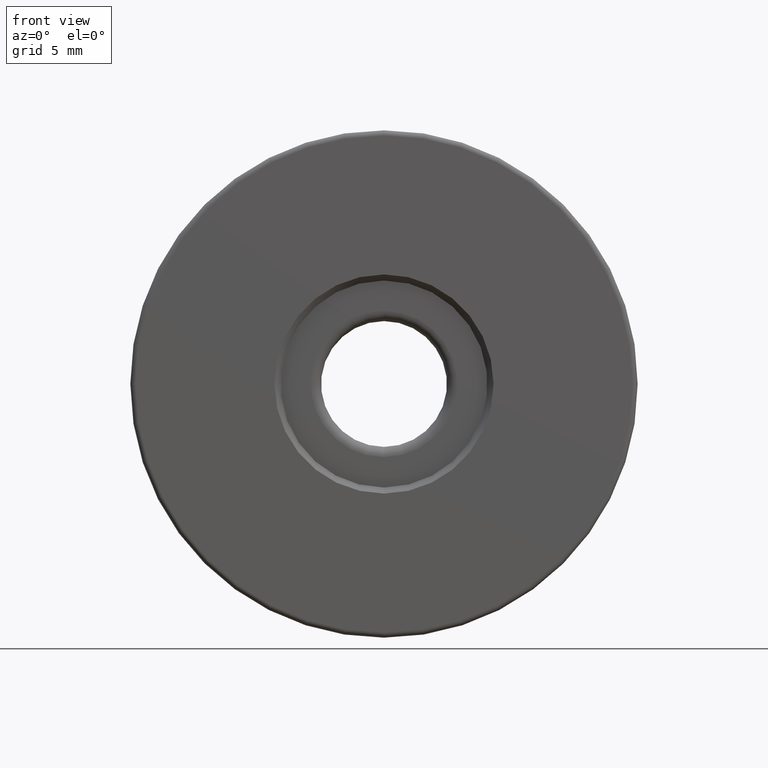
[diagram: clean part render]
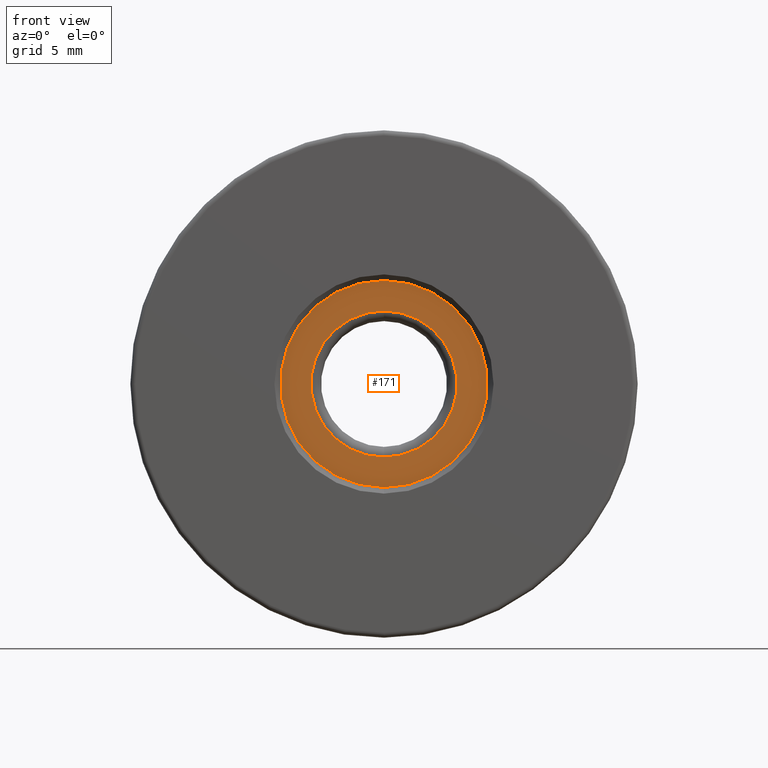
[diagram: same view with one face highlighted and labeled with its STEP entity id]
A machine part, front view. The second image highlights one B-rep face of the part: STEP entity #171.
In plain terms, the highlighted planar face has unit normal (0, -1, 0).
Its self-contained STEP definition (entity closure, byte-faithful):
#19 = DIRECTION ( 'NONE',  ( 0.0000000000000000000, 0.0000000000000000000, 1.000000000000000000 ) ) ;
#74 = CARTESIAN_POINT ( 'NONE',  ( -4.682026255059962949, -4.794975976998276046, 28.60000000000000142 ) ) ;
#87 = CARTESIAN_POINT ( 'NONE',  ( -4.682026255059963837, -4.794975976998275158, 30.10000000000000142 ) ) ;
#94 = DIRECTION ( 'NONE',  ( 0.0000000000000000000, 0.0000000000000000000, 1.000000000000000000 ) ) ;
#108 = VERTEX_POINT ( 'NONE', #87 ) ;
#118 = AXIS2_PLACEMENT_3D ( 'NONE', #469, #511, #236 ) ;
#171 = ADVANCED_FACE ( 'NONE', ( #331, #617 ), #520, .T. ) ;
#178 = ORIENTED_EDGE ( 'NONE', *, *, #560, .F. ) ;
#189 = CARTESIAN_POINT ( 'NONE',  ( -4.682026255059964726, -4.794975976998275158, 25.00000000000000000 ) ) ;
#200 = CARTESIAN_POINT ( 'NONE',  ( -4.682026255059964726, -4.794975976998275158, 25.00000000000000000 ) ) ;
#227 = DIRECTION ( 'NONE',  ( -0.0000000000000000000, 1.000000000000000000, -0.0000000000000000000 ) ) ;
#236 = DIRECTION ( 'NONE',  ( 0.0000000000000000000, 0.0000000000000000000, -1.000000000000000000 ) ) ;
#238 = EDGE_LOOP ( 'NONE', ( #178, #361 ) ) ;
#255 = CIRCLE ( 'NONE', #437, 3.599999999999999201 ) ;
#260 = CARTESIAN_POINT ( 'NONE',  ( -4.682026255059964726, -4.794975976998276046, 21.40000000000000213 ) ) ;
#281 = EDGE_CURVE ( 'NONE', #108, #404, #308, .T. ) ;
#285 = DIRECTION ( 'NONE',  ( 0.0000000000000000000, -1.000000000000000000, 0.0000000000000000000 ) ) ;
#293 = DIRECTION ( 'NONE',  ( -0.0000000000000000000, 1.000000000000000000, -0.0000000000000000000 ) ) ;
#302 = EDGE_CURVE ( 'NONE', #530, #498, #255, .T. ) ;
#308 = CIRCLE ( 'NONE', #611, 5.100000000000000533 ) ;
#331 = FACE_BOUND ( 'NONE', #429, .T. ) ;
#361 = ORIENTED_EDGE ( 'NONE', *, *, #281, .F. ) ;
#368 = ORIENTED_EDGE ( 'NONE', *, *, #555, .T. ) ;
#374 = CIRCLE ( 'NONE', #118, 3.599999999999999201 ) ;
#380 = CARTESIAN_POINT ( 'NONE',  ( -4.682026255059964726, -4.794975976998275158, 25.00000000000000000 ) ) ;
#400 = CARTESIAN_POINT ( 'NONE',  ( -4.682026255059964726, -4.794975976998275158, 25.00000000000000000 ) ) ;
#404 = VERTEX_POINT ( 'NONE', #450 ) ;
#424 = AXIS2_PLACEMENT_3D ( 'NONE', #380, #285, #475 ) ;
#429 = EDGE_LOOP ( 'NONE', ( #615, #368 ) ) ;
#437 = AXIS2_PLACEMENT_3D ( 'NONE', #400, #293, #541 ) ;
#450 = CARTESIAN_POINT ( 'NONE',  ( -4.682026255059964726, -4.794975976998275158, 19.90000000000000213 ) ) ;
#469 = CARTESIAN_POINT ( 'NONE',  ( -4.682026255059964726, -4.794975976998275158, 25.00000000000000000 ) ) ;
#475 = DIRECTION ( 'NONE',  ( 0.0000000000000000000, 0.0000000000000000000, 1.000000000000000000 ) ) ;
#476 = CIRCLE ( 'NONE', #514, 5.100000000000000533 ) ;
#493 = DIRECTION ( 'NONE',  ( -0.0000000000000000000, 1.000000000000000000, -0.0000000000000000000 ) ) ;
#498 = VERTEX_POINT ( 'NONE', #74 ) ;
#511 = DIRECTION ( 'NONE',  ( -0.0000000000000000000, 1.000000000000000000, -0.0000000000000000000 ) ) ;
#514 = AXIS2_PLACEMENT_3D ( 'NONE', #189, #227, #94 ) ;
#520 = PLANE ( 'NONE',  #424 ) ;
#530 = VERTEX_POINT ( 'NONE', #260 ) ;
#541 = DIRECTION ( 'NONE',  ( 0.0000000000000000000, 0.0000000000000000000, -1.000000000000000000 ) ) ;
#555 = EDGE_CURVE ( 'NONE', #498, #530, #374, .T. ) ;
#560 = EDGE_CURVE ( 'NONE', #404, #108, #476, .T. ) ;
#611 = AXIS2_PLACEMENT_3D ( 'NONE', #200, #493, #19 ) ;
#615 = ORIENTED_EDGE ( 'NONE', *, *, #302, .T. ) ;
#617 = FACE_OUTER_BOUND ( 'NONE', #238, .T. ) ;